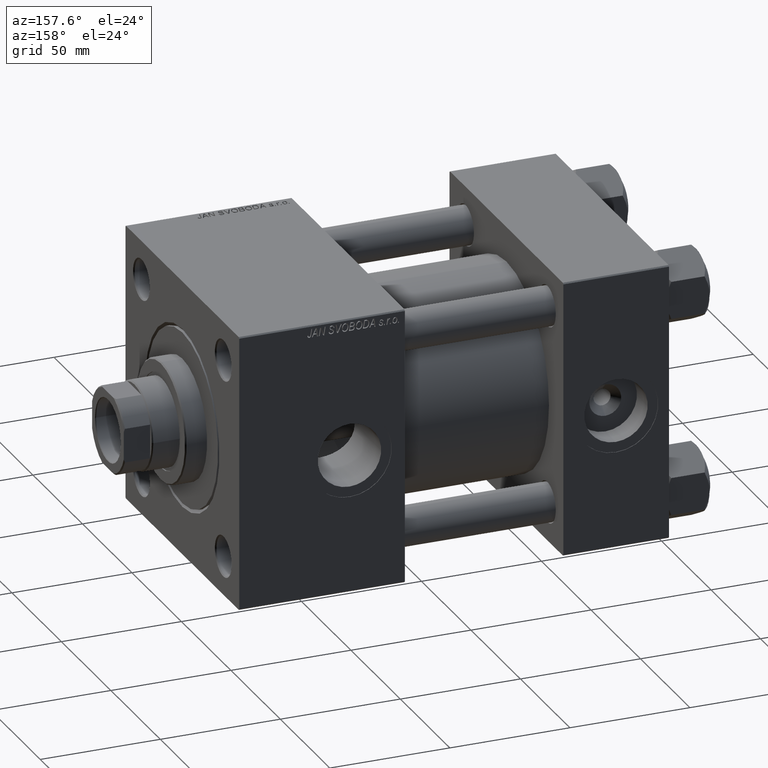
[diagram: clean part render]
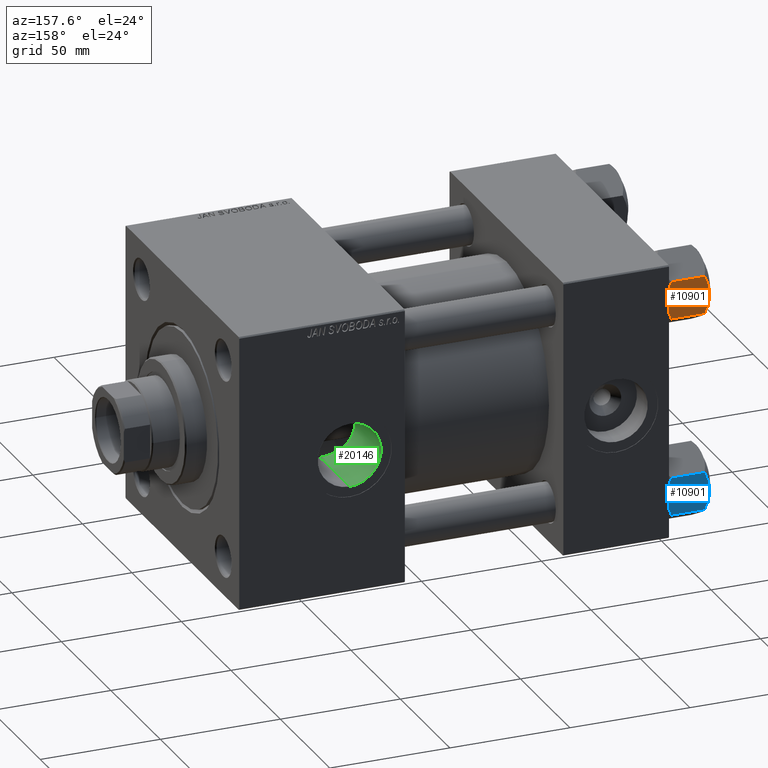
[diagram: same view with three faces highlighted in distinct colors, each labeled with its STEP entity id]
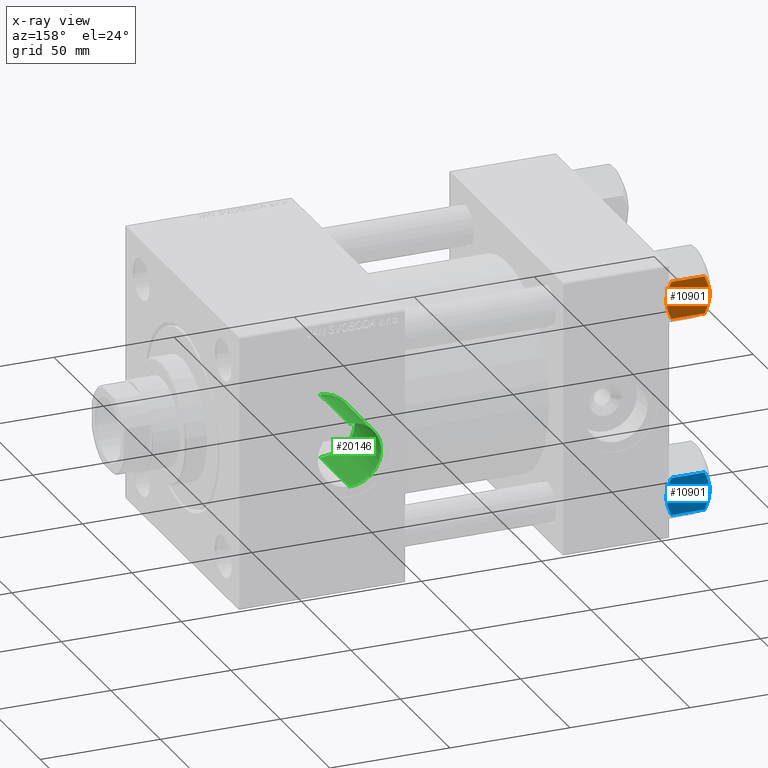
[diagram: x-ray of the same camera — body ghosted, the three highlighted faces saturated]
A machine part, auxiliary view with three faces highlighted in distinct colors.
The next image is the same camera in x-ray (body ghosted, the three faces saturated) — at least one of them is partly hidden behind the body in this view.
Their STEP definitions:

[orange] entity #10901 — the highlighted planar face has unit normal (0, -1, 0).
#86 = ORIENTED_EDGE ( 'NONE', *, *, #8301, .F. ) ;
#1046 = DIRECTION ( 'NONE',  ( -0.000000000000000000, -0.000000000000000000, 1.000000000000000000 ) ) ;
#1047 = VECTOR ( 'NONE', #27387, 1000.000000000000000 ) ;
#1972 = AXIS2_PLACEMENT_3D ( 'NONE', #14647, #42037, #45891 ) ;
#2108 = CARTESIAN_POINT ( 'NONE',  ( -1.502314598737160017E-15, 13.52731680711293727, 0.000000000000000000 ) ) ;
#2343 = VECTOR ( 'NONE', #1046, 1000.000000000000000 ) ;
#2910 = VERTEX_POINT ( 'NONE', #13331 ) ;
#4716 = VERTEX_POINT ( 'NONE', #44578 ) ;
#4826 = CARTESIAN_POINT ( 'NONE',  ( 2.638177715023106717, 13.52731680711294260, -0.2001540676698861931 ) ) ;
#7539 = DIRECTION ( 'NONE',  ( -0.000000000000000000, -0.000000000000000000, 1.000000000000000000 ) ) ;
#8301 = EDGE_CURVE ( 'NONE', #19557, #4716, #31236, .T. ) ;
#9397 = DIRECTION ( 'NONE',  ( 1.000000000000000000, 1.110578409716265846E-16, 0.000000000000000000 ) ) ;
#9904 = LINE ( 'NONE', #41388, #35497 ) ;
#10358 = EDGE_CURVE ( 'NONE', #49300, #31020, #9904, .T. ) ;
#10441 = CARTESIAN_POINT ( 'NONE',  ( 4.557734399832398253, 13.52731680711293905, -17.26585298258848056 ) ) ;
#10701 = CARTESIAN_POINT ( 'NONE',  ( 5.184073258379385152, 13.52731680711294260, -17.05185620934991064 ) ) ;
#10744 = B_SPLINE_CURVE_WITH_KNOTS ( 'NONE', 3,
 ( #26835, #38851, #22999, #19653, #15813, #31436, #47055, #30436 ),
 .UNSPECIFIED., .F., .F.,
 ( 4, 2, 2, 4 ),
 ( 0.01980594295952730829, 0.02179054093496184119, 0.02377513891039637409, 0.02774433486126544682 ),
 .UNSPECIFIED. ) ;
#10814 = CARTESIAN_POINT ( 'NONE',  ( -1.333889873825134353, 13.52731680711293905, -0.06156641003439419085 ) ) ;
#10901 = ADVANCED_FACE ( 'NONE', ( #49716 ), #25904, .F. ) ;
#10963 = CARTESIAN_POINT ( 'NONE',  ( 1.663410456966167184, 13.52731680711293905, -17.90195050864299375 ) ) ;
#11162 = CARTESIAN_POINT ( 'NONE',  ( -7.809999999999996945, 13.52731680711293727, -1.999999999999998224 ) ) ;
#11833 = LINE ( 'NONE', #47659, #2343 ) ;
#12269 = CARTESIAN_POINT ( 'NONE',  ( 5.189513245496327976, 13.52731680711294082, -0.9501108431732597781 ) ) ;
#12513 = CARTESIAN_POINT ( 'NONE',  ( 7.622943475354644782, 13.52731680711293727, -2.000000000000000000 ) ) ;
#13331 = CARTESIAN_POINT ( 'NONE',  ( -7.809999999999996945, 13.52731680711293727, -1.999999999999998224 ) ) ;
#13636 = CARTESIAN_POINT ( 'NONE',  ( -7.622943475354648335, 13.52731680711293727, -2.000000000000000000 ) ) ;
#14392 = CARTESIAN_POINT ( 'NONE',  ( -2.644243758052991389, 13.52731680711293905, -0.2408281198023998759 ) ) ;
#14581 = CARTESIAN_POINT ( 'NONE',  ( -1.502314598737160017E-15, 13.52731680711293727, -18.00000000000000000 ) ) ;
#14647 = CARTESIAN_POINT ( 'NONE',  ( -7.809999999999996945, 13.52731680711293727, -18.00000000000000000 ) ) ;
#14660 = CARTESIAN_POINT ( 'NONE',  ( -4.557734399832416905, 13.52731680711293905, -0.7341470174115153347 ) ) ;
#15091 = CARTESIAN_POINT ( 'NONE',  ( 0.6693083573771171357, 13.52731680711294082, -17.98750666918890673 ) ) ;
#15813 = CARTESIAN_POINT ( 'NONE',  ( -4.553769687922292420, 13.52731680711293905, -17.26727080048547691 ) ) ;
#16839 = EDGE_CURVE ( 'NONE', #39365, #2910, #42649, .T. ) ;
#17977 = CARTESIAN_POINT ( 'NONE',  ( -0.6693083573771214656, 13.52731680711293727, -0.01249333081108175945 ) ) ;
#18146 = CARTESIAN_POINT ( 'NONE',  ( -7.622943475354626131, 13.52731680711293727, -16.00000000000000000 ) ) ;
#18485 = CARTESIAN_POINT ( 'NONE',  ( -0.3330234424833839468, 13.52731680711293727, -8.499975625696903903E-16 ) ) ;
#18658 = LINE ( 'NONE', #37608, #18967 ) ;
#18842 = DIRECTION ( 'NONE',  ( -1.000000000000000000, -1.110578409716265846E-16, 0.000000000000000000 ) ) ;
#18967 = VECTOR ( 'NONE', #49383, 1000.000000000000000 ) ;
#19069 = CARTESIAN_POINT ( 'NONE',  ( 7.810000000000001386, 13.52731680711293905, -18.00000000000000000 ) ) ;
#19146 = CARTESIAN_POINT ( 'NONE',  ( 7.622943475354622578, 13.52731680711293727, -16.00000000000000000 ) ) ;
#19212 = EDGE_CURVE ( 'NONE', #4716, #47439, #35738, .T. ) ;
#19557 = VERTEX_POINT ( 'NONE', #30433 ) ;
#19653 = CARTESIAN_POINT ( 'NONE',  ( -5.189513245496315541, 13.52731680711293727, -17.04988915682673678 ) ) ;
#19857 = ORIENTED_EDGE ( 'NONE', *, *, #10358, .F. ) ;
#20260 = CARTESIAN_POINT ( 'NONE',  ( -7.622943475354648335, 13.52731680711293727, -2.000000000000000000 ) ) ;
#20599 = VERTEX_POINT ( 'NONE', #41665 ) ;
#20704 = CARTESIAN_POINT ( 'NONE',  ( -1.502314598737160017E-15, 13.52731680711293727, 0.000000000000000000 ) ) ;
#20794 = VECTOR ( 'NONE', #18842, 1000.000000000000000 ) ;
#20913 = ORIENTED_EDGE ( 'NONE', *, *, #19212, .F. ) ;
#21816 = CARTESIAN_POINT ( 'NONE',  ( -7.030203932307583337, 13.52731680711293372, -1.709001877891392907 ) ) ;
#22518 = CARTESIAN_POINT ( 'NONE',  ( 0.3330234424833806162, 13.52731680711293905, -17.99999999999998579 ) ) ;
#22999 = CARTESIAN_POINT ( 'NONE',  ( -6.427364677720452946, 13.52731680711293905, -16.56149306284485334 ) ) ;
#23291 = CARTESIAN_POINT ( 'NONE',  ( -7.809999999999996945, 13.52731680711293727, -1.999999999999998224 ) ) ;
#24557 = CARTESIAN_POINT ( 'NONE',  ( 7.030888348548061551, 13.52731680711294082, -1.709337883550299697 ) ) ;
#25053 = EDGE_CURVE ( 'NONE', #44853, #47062, #27868, .T. ) ;
#25671 = CARTESIAN_POINT ( 'NONE',  ( -3.287826776903158166, 13.52731680711293905, -0.3804584453753378503 ) ) ;
#25904 = PLANE ( 'NONE',  #1972 ) ;
#26067 = CARTESIAN_POINT ( 'NONE',  ( 6.422751913021802039, 13.52731680711294260, -16.56349088907410660 ) ) ;
#26828 = CARTESIAN_POINT ( 'NONE',  ( 3.287826776903140402, 13.52731680711293905, -17.61954155462465721 ) ) ;
#26835 = CARTESIAN_POINT ( 'NONE',  ( -7.622943475354626131, 13.52731680711293727, -16.00000000000000000 ) ) ;
#27387 = DIRECTION ( 'NONE',  ( -1.000000000000000000, -1.110578409716265846E-16, 0.000000000000000000 ) ) ;
#27868 = B_SPLINE_CURVE_WITH_KNOTS ( 'NONE', 3,
 ( #14581, #22518, #15091, #50134, #10963, #49882, #26828, #10441, #10701, #26067, #38096, #19146 ),
 .UNSPECIFIED., .F., .F.,
 ( 4, 2, 2, 2, 2, 4 ),
 ( 0.02774433486126544682, 0.02873404020403548184, 0.02972374554680551340, 0.03170315623234558344, 0.03368256691788565349, 0.03566197760342572354 ),
 .UNSPECIFIED. ) ;
#28130 = ORIENTED_EDGE ( 'NONE', *, *, #50326, .T. ) ;
#29208 = CARTESIAN_POINT ( 'NONE',  ( -7.809999999999996945, 13.52731680711293727, -16.00000000000000000 ) ) ;
#29282 = VECTOR ( 'NONE', #7539, 1000.000000000000000 ) ;
#29327 = EDGE_CURVE ( 'NONE', #20599, #19557, #34178, .T. ) ;
#29513 = CARTESIAN_POINT ( 'NONE',  ( -6.422751913021828685, 13.52731680711293905, -1.436509110925899391 ) ) ;
#30433 = CARTESIAN_POINT ( 'NONE',  ( 7.810000000000000497, 13.52731680711293905, -1.999999999999998224 ) ) ;
#30436 = CARTESIAN_POINT ( 'NONE',  ( -1.502314598737160017E-15, 13.52731680711293727, -18.00000000000000000 ) ) ;
#30815 = CARTESIAN_POINT ( 'NONE',  ( -1.502314598737160017E-15, 13.52731680711293727, -18.00000000000000000 ) ) ;
#31020 = VERTEX_POINT ( 'NONE', #18146 ) ;
#31236 = LINE ( 'NONE', #23291, #1047 ) ;
#31436 = CARTESIAN_POINT ( 'NONE',  ( -2.638177715023100056, 13.52731680711293905, -17.79984593233010770 ) ) ;
#31885 = ORIENTED_EDGE ( 'NONE', *, *, #16839, .F. ) ;
#32269 = ORIENTED_EDGE ( 'NONE', *, *, #25053, .F. ) ;
#32792 = EDGE_CURVE ( 'NONE', #47439, #39365, #48734, .T. ) ;
#32955 = ORIENTED_EDGE ( 'NONE', *, *, #34315, .F. ) ;
#33197 = ORIENTED_EDGE ( 'NONE', *, *, #32792, .F. ) ;
#34178 = LINE ( 'NONE', #19069, #29282 ) ;
#34315 = EDGE_CURVE ( 'NONE', #31020, #44853, #10744, .T. ) ;
#35140 = CARTESIAN_POINT ( 'NONE',  ( -1.502314598737160017E-15, 13.52731680711293727, 0.000000000000000000 ) ) ;
#35497 = VECTOR ( 'NONE', #9397, 1000.000000000000000 ) ;
#35738 = B_SPLINE_CURVE_WITH_KNOTS ( 'NONE', 3,
 ( #12513, #24557, #43756, #12269, #40170, #4826, #47107, #20704 ),
 .UNSPECIFIED., .F., .F.,
 ( 4, 2, 2, 4 ),
 ( 0.01980594295952729095, 0.02179054093496183425, 0.02377513891039637409, 0.02774433486126545723 ),
 .UNSPECIFIED. ) ;
#37608 = CARTESIAN_POINT ( 'NONE',  ( -7.809999999999996945, 13.52731680711293727, -16.00000000000000000 ) ) ;
#37790 = EDGE_LOOP ( 'NONE', ( #19857, #28130, #31885, #33197, #20913, #86, #38381, #46505, #32269, #32955 ) ) ;
#38096 = CARTESIAN_POINT ( 'NONE',  ( 7.030203932307562908, 13.52731680711294260, -16.29099812210860065 ) ) ;
#38381 = ORIENTED_EDGE ( 'NONE', *, *, #29327, .F. ) ;
#38748 = EDGE_CURVE ( 'NONE', #47062, #20599, #18658, .T. ) ;
#38851 = CARTESIAN_POINT ( 'NONE',  ( -7.030888348548044675, 13.52731680711294082, -16.29066211644970252 ) ) ;
#39365 = VERTEX_POINT ( 'NONE', #20260 ) ;
#40170 = CARTESIAN_POINT ( 'NONE',  ( 4.553769687922307519, 13.52731680711294260, -0.7327291995145179815 ) ) ;
#41388 = CARTESIAN_POINT ( 'NONE',  ( -7.809999999999996945, 13.52731680711293727, -16.00000000000000000 ) ) ;
#41665 = CARTESIAN_POINT ( 'NONE',  ( 7.810000000000000497, 13.52731680711293905, -16.00000000000000000 ) ) ;
#42037 = DIRECTION ( 'NONE',  ( 1.110578409716265846E-16, -1.000000000000000000, 0.000000000000000000 ) ) ;
#42649 = LINE ( 'NONE', #11162, #20794 ) ;
#43756 = CARTESIAN_POINT ( 'NONE',  ( 6.427364677720470709, 13.52731680711294082, -1.438506937155140442 ) ) ;
#44578 = CARTESIAN_POINT ( 'NONE',  ( 7.622943475354644782, 13.52731680711293727, -2.000000000000000000 ) ) ;
#44853 = VERTEX_POINT ( 'NONE', #30815 ) ;
#45891 = DIRECTION ( 'NONE',  ( 1.000000000000000000, 1.110578409716265846E-16, 0.000000000000000000 ) ) ;
#46245 = CARTESIAN_POINT ( 'NONE',  ( 7.622943475354622578, 13.52731680711293727, -16.00000000000000000 ) ) ;
#46505 = ORIENTED_EDGE ( 'NONE', *, *, #38748, .F. ) ;
#47055 = CARTESIAN_POINT ( 'NONE',  ( -1.335584685993412180, 13.52731680711293549, -17.99999999999998224 ) ) ;
#47062 = VERTEX_POINT ( 'NONE', #46245 ) ;
#47107 = CARTESIAN_POINT ( 'NONE',  ( 1.335584685993415732, 13.52731680711294260, -9.825582188149885905E-16 ) ) ;
#47439 = VERTEX_POINT ( 'NONE', #35140 ) ;
#47659 = CARTESIAN_POINT ( 'NONE',  ( -7.809999999999996945, 13.52731680711293727, -18.00000000000000000 ) ) ;
#48709 = CARTESIAN_POINT ( 'NONE',  ( -1.663410456966174955, 13.52731680711293905, -0.09804949135699160545 ) ) ;
#48734 = B_SPLINE_CURVE_WITH_KNOTS ( 'NONE', 3,
 ( #2108, #18485, #17977, #10814, #48709, #14392, #25671, #14660, #49729, #29513, #21816, #13636 ),
 .UNSPECIFIED., .F., .F.,
 ( 4, 2, 2, 2, 2, 4 ),
 ( 0.02774433486126545723, 0.02873404020403549572, 0.02972374554680553421, 0.03170315623234561120, 0.03368256691788568125, 0.03566197760342575823 ),
 .UNSPECIFIED. ) ;
#49300 = VERTEX_POINT ( 'NONE', #29208 ) ;
#49383 = DIRECTION ( 'NONE',  ( 1.000000000000000000, 1.110578409716265846E-16, 0.000000000000000000 ) ) ;
#49716 = FACE_OUTER_BOUND ( 'NONE', #37790, .T. ) ;
#49729 = CARTESIAN_POINT ( 'NONE',  ( -5.184073258379408244, 13.52731680711293727, -0.9481437906500859158 ) ) ;
#49882 = CARTESIAN_POINT ( 'NONE',  ( 2.644243758052981175, 13.52731680711294082, -17.75917188019759507 ) ) ;
#50134 = CARTESIAN_POINT ( 'NONE',  ( 1.333889873825127248, 13.52731680711293549, -17.93843358996559090 ) ) ;
#50326 = EDGE_CURVE ( 'NONE', #49300, #2910, #11833, .T. ) ;

[blue] entity #10901 — the highlighted planar face has unit normal (0, -1, 0).
#86 = ORIENTED_EDGE ( 'NONE', *, *, #8301, .F. ) ;
#1046 = DIRECTION ( 'NONE',  ( -0.000000000000000000, -0.000000000000000000, 1.000000000000000000 ) ) ;
#1047 = VECTOR ( 'NONE', #27387, 1000.000000000000000 ) ;
#1972 = AXIS2_PLACEMENT_3D ( 'NONE', #14647, #42037, #45891 ) ;
#2108 = CARTESIAN_POINT ( 'NONE',  ( -1.502314598737160017E-15, 13.52731680711293727, 0.000000000000000000 ) ) ;
#2343 = VECTOR ( 'NONE', #1046, 1000.000000000000000 ) ;
#2910 = VERTEX_POINT ( 'NONE', #13331 ) ;
#4716 = VERTEX_POINT ( 'NONE', #44578 ) ;
#4826 = CARTESIAN_POINT ( 'NONE',  ( 2.638177715023106717, 13.52731680711294260, -0.2001540676698861931 ) ) ;
#7539 = DIRECTION ( 'NONE',  ( -0.000000000000000000, -0.000000000000000000, 1.000000000000000000 ) ) ;
#8301 = EDGE_CURVE ( 'NONE', #19557, #4716, #31236, .T. ) ;
#9397 = DIRECTION ( 'NONE',  ( 1.000000000000000000, 1.110578409716265846E-16, 0.000000000000000000 ) ) ;
#9904 = LINE ( 'NONE', #41388, #35497 ) ;
#10358 = EDGE_CURVE ( 'NONE', #49300, #31020, #9904, .T. ) ;
#10441 = CARTESIAN_POINT ( 'NONE',  ( 4.557734399832398253, 13.52731680711293905, -17.26585298258848056 ) ) ;
#10701 = CARTESIAN_POINT ( 'NONE',  ( 5.184073258379385152, 13.52731680711294260, -17.05185620934991064 ) ) ;
#10744 = B_SPLINE_CURVE_WITH_KNOTS ( 'NONE', 3,
 ( #26835, #38851, #22999, #19653, #15813, #31436, #47055, #30436 ),
 .UNSPECIFIED., .F., .F.,
 ( 4, 2, 2, 4 ),
 ( 0.01980594295952730829, 0.02179054093496184119, 0.02377513891039637409, 0.02774433486126544682 ),
 .UNSPECIFIED. ) ;
#10814 = CARTESIAN_POINT ( 'NONE',  ( -1.333889873825134353, 13.52731680711293905, -0.06156641003439419085 ) ) ;
#10901 = ADVANCED_FACE ( 'NONE', ( #49716 ), #25904, .F. ) ;
#10963 = CARTESIAN_POINT ( 'NONE',  ( 1.663410456966167184, 13.52731680711293905, -17.90195050864299375 ) ) ;
#11162 = CARTESIAN_POINT ( 'NONE',  ( -7.809999999999996945, 13.52731680711293727, -1.999999999999998224 ) ) ;
#11833 = LINE ( 'NONE', #47659, #2343 ) ;
#12269 = CARTESIAN_POINT ( 'NONE',  ( 5.189513245496327976, 13.52731680711294082, -0.9501108431732597781 ) ) ;
#12513 = CARTESIAN_POINT ( 'NONE',  ( 7.622943475354644782, 13.52731680711293727, -2.000000000000000000 ) ) ;
#13331 = CARTESIAN_POINT ( 'NONE',  ( -7.809999999999996945, 13.52731680711293727, -1.999999999999998224 ) ) ;
#13636 = CARTESIAN_POINT ( 'NONE',  ( -7.622943475354648335, 13.52731680711293727, -2.000000000000000000 ) ) ;
#14392 = CARTESIAN_POINT ( 'NONE',  ( -2.644243758052991389, 13.52731680711293905, -0.2408281198023998759 ) ) ;
#14581 = CARTESIAN_POINT ( 'NONE',  ( -1.502314598737160017E-15, 13.52731680711293727, -18.00000000000000000 ) ) ;
#14647 = CARTESIAN_POINT ( 'NONE',  ( -7.809999999999996945, 13.52731680711293727, -18.00000000000000000 ) ) ;
#14660 = CARTESIAN_POINT ( 'NONE',  ( -4.557734399832416905, 13.52731680711293905, -0.7341470174115153347 ) ) ;
#15091 = CARTESIAN_POINT ( 'NONE',  ( 0.6693083573771171357, 13.52731680711294082, -17.98750666918890673 ) ) ;
#15813 = CARTESIAN_POINT ( 'NONE',  ( -4.553769687922292420, 13.52731680711293905, -17.26727080048547691 ) ) ;
#16839 = EDGE_CURVE ( 'NONE', #39365, #2910, #42649, .T. ) ;
#17977 = CARTESIAN_POINT ( 'NONE',  ( -0.6693083573771214656, 13.52731680711293727, -0.01249333081108175945 ) ) ;
#18146 = CARTESIAN_POINT ( 'NONE',  ( -7.622943475354626131, 13.52731680711293727, -16.00000000000000000 ) ) ;
#18485 = CARTESIAN_POINT ( 'NONE',  ( -0.3330234424833839468, 13.52731680711293727, -8.499975625696903903E-16 ) ) ;
#18658 = LINE ( 'NONE', #37608, #18967 ) ;
#18842 = DIRECTION ( 'NONE',  ( -1.000000000000000000, -1.110578409716265846E-16, 0.000000000000000000 ) ) ;
#18967 = VECTOR ( 'NONE', #49383, 1000.000000000000000 ) ;
#19069 = CARTESIAN_POINT ( 'NONE',  ( 7.810000000000001386, 13.52731680711293905, -18.00000000000000000 ) ) ;
#19146 = CARTESIAN_POINT ( 'NONE',  ( 7.622943475354622578, 13.52731680711293727, -16.00000000000000000 ) ) ;
#19212 = EDGE_CURVE ( 'NONE', #4716, #47439, #35738, .T. ) ;
#19557 = VERTEX_POINT ( 'NONE', #30433 ) ;
#19653 = CARTESIAN_POINT ( 'NONE',  ( -5.189513245496315541, 13.52731680711293727, -17.04988915682673678 ) ) ;
#19857 = ORIENTED_EDGE ( 'NONE', *, *, #10358, .F. ) ;
#20260 = CARTESIAN_POINT ( 'NONE',  ( -7.622943475354648335, 13.52731680711293727, -2.000000000000000000 ) ) ;
#20599 = VERTEX_POINT ( 'NONE', #41665 ) ;
#20704 = CARTESIAN_POINT ( 'NONE',  ( -1.502314598737160017E-15, 13.52731680711293727, 0.000000000000000000 ) ) ;
#20794 = VECTOR ( 'NONE', #18842, 1000.000000000000000 ) ;
#20913 = ORIENTED_EDGE ( 'NONE', *, *, #19212, .F. ) ;
#21816 = CARTESIAN_POINT ( 'NONE',  ( -7.030203932307583337, 13.52731680711293372, -1.709001877891392907 ) ) ;
#22518 = CARTESIAN_POINT ( 'NONE',  ( 0.3330234424833806162, 13.52731680711293905, -17.99999999999998579 ) ) ;
#22999 = CARTESIAN_POINT ( 'NONE',  ( -6.427364677720452946, 13.52731680711293905, -16.56149306284485334 ) ) ;
#23291 = CARTESIAN_POINT ( 'NONE',  ( -7.809999999999996945, 13.52731680711293727, -1.999999999999998224 ) ) ;
#24557 = CARTESIAN_POINT ( 'NONE',  ( 7.030888348548061551, 13.52731680711294082, -1.709337883550299697 ) ) ;
#25053 = EDGE_CURVE ( 'NONE', #44853, #47062, #27868, .T. ) ;
#25671 = CARTESIAN_POINT ( 'NONE',  ( -3.287826776903158166, 13.52731680711293905, -0.3804584453753378503 ) ) ;
#25904 = PLANE ( 'NONE',  #1972 ) ;
#26067 = CARTESIAN_POINT ( 'NONE',  ( 6.422751913021802039, 13.52731680711294260, -16.56349088907410660 ) ) ;
#26828 = CARTESIAN_POINT ( 'NONE',  ( 3.287826776903140402, 13.52731680711293905, -17.61954155462465721 ) ) ;
#26835 = CARTESIAN_POINT ( 'NONE',  ( -7.622943475354626131, 13.52731680711293727, -16.00000000000000000 ) ) ;
#27387 = DIRECTION ( 'NONE',  ( -1.000000000000000000, -1.110578409716265846E-16, 0.000000000000000000 ) ) ;
#27868 = B_SPLINE_CURVE_WITH_KNOTS ( 'NONE', 3,
 ( #14581, #22518, #15091, #50134, #10963, #49882, #26828, #10441, #10701, #26067, #38096, #19146 ),
 .UNSPECIFIED., .F., .F.,
 ( 4, 2, 2, 2, 2, 4 ),
 ( 0.02774433486126544682, 0.02873404020403548184, 0.02972374554680551340, 0.03170315623234558344, 0.03368256691788565349, 0.03566197760342572354 ),
 .UNSPECIFIED. ) ;
#28130 = ORIENTED_EDGE ( 'NONE', *, *, #50326, .T. ) ;
#29208 = CARTESIAN_POINT ( 'NONE',  ( -7.809999999999996945, 13.52731680711293727, -16.00000000000000000 ) ) ;
#29282 = VECTOR ( 'NONE', #7539, 1000.000000000000000 ) ;
#29327 = EDGE_CURVE ( 'NONE', #20599, #19557, #34178, .T. ) ;
#29513 = CARTESIAN_POINT ( 'NONE',  ( -6.422751913021828685, 13.52731680711293905, -1.436509110925899391 ) ) ;
#30433 = CARTESIAN_POINT ( 'NONE',  ( 7.810000000000000497, 13.52731680711293905, -1.999999999999998224 ) ) ;
#30436 = CARTESIAN_POINT ( 'NONE',  ( -1.502314598737160017E-15, 13.52731680711293727, -18.00000000000000000 ) ) ;
#30815 = CARTESIAN_POINT ( 'NONE',  ( -1.502314598737160017E-15, 13.52731680711293727, -18.00000000000000000 ) ) ;
#31020 = VERTEX_POINT ( 'NONE', #18146 ) ;
#31236 = LINE ( 'NONE', #23291, #1047 ) ;
#31436 = CARTESIAN_POINT ( 'NONE',  ( -2.638177715023100056, 13.52731680711293905, -17.79984593233010770 ) ) ;
#31885 = ORIENTED_EDGE ( 'NONE', *, *, #16839, .F. ) ;
#32269 = ORIENTED_EDGE ( 'NONE', *, *, #25053, .F. ) ;
#32792 = EDGE_CURVE ( 'NONE', #47439, #39365, #48734, .T. ) ;
#32955 = ORIENTED_EDGE ( 'NONE', *, *, #34315, .F. ) ;
#33197 = ORIENTED_EDGE ( 'NONE', *, *, #32792, .F. ) ;
#34178 = LINE ( 'NONE', #19069, #29282 ) ;
#34315 = EDGE_CURVE ( 'NONE', #31020, #44853, #10744, .T. ) ;
#35140 = CARTESIAN_POINT ( 'NONE',  ( -1.502314598737160017E-15, 13.52731680711293727, 0.000000000000000000 ) ) ;
#35497 = VECTOR ( 'NONE', #9397, 1000.000000000000000 ) ;
#35738 = B_SPLINE_CURVE_WITH_KNOTS ( 'NONE', 3,
 ( #12513, #24557, #43756, #12269, #40170, #4826, #47107, #20704 ),
 .UNSPECIFIED., .F., .F.,
 ( 4, 2, 2, 4 ),
 ( 0.01980594295952729095, 0.02179054093496183425, 0.02377513891039637409, 0.02774433486126545723 ),
 .UNSPECIFIED. ) ;
#37608 = CARTESIAN_POINT ( 'NONE',  ( -7.809999999999996945, 13.52731680711293727, -16.00000000000000000 ) ) ;
#37790 = EDGE_LOOP ( 'NONE', ( #19857, #28130, #31885, #33197, #20913, #86, #38381, #46505, #32269, #32955 ) ) ;
#38096 = CARTESIAN_POINT ( 'NONE',  ( 7.030203932307562908, 13.52731680711294260, -16.29099812210860065 ) ) ;
#38381 = ORIENTED_EDGE ( 'NONE', *, *, #29327, .F. ) ;
#38748 = EDGE_CURVE ( 'NONE', #47062, #20599, #18658, .T. ) ;
#38851 = CARTESIAN_POINT ( 'NONE',  ( -7.030888348548044675, 13.52731680711294082, -16.29066211644970252 ) ) ;
#39365 = VERTEX_POINT ( 'NONE', #20260 ) ;
#40170 = CARTESIAN_POINT ( 'NONE',  ( 4.553769687922307519, 13.52731680711294260, -0.7327291995145179815 ) ) ;
#41388 = CARTESIAN_POINT ( 'NONE',  ( -7.809999999999996945, 13.52731680711293727, -16.00000000000000000 ) ) ;
#41665 = CARTESIAN_POINT ( 'NONE',  ( 7.810000000000000497, 13.52731680711293905, -16.00000000000000000 ) ) ;
#42037 = DIRECTION ( 'NONE',  ( 1.110578409716265846E-16, -1.000000000000000000, 0.000000000000000000 ) ) ;
#42649 = LINE ( 'NONE', #11162, #20794 ) ;
#43756 = CARTESIAN_POINT ( 'NONE',  ( 6.427364677720470709, 13.52731680711294082, -1.438506937155140442 ) ) ;
#44578 = CARTESIAN_POINT ( 'NONE',  ( 7.622943475354644782, 13.52731680711293727, -2.000000000000000000 ) ) ;
#44853 = VERTEX_POINT ( 'NONE', #30815 ) ;
#45891 = DIRECTION ( 'NONE',  ( 1.000000000000000000, 1.110578409716265846E-16, 0.000000000000000000 ) ) ;
#46245 = CARTESIAN_POINT ( 'NONE',  ( 7.622943475354622578, 13.52731680711293727, -16.00000000000000000 ) ) ;
#46505 = ORIENTED_EDGE ( 'NONE', *, *, #38748, .F. ) ;
#47055 = CARTESIAN_POINT ( 'NONE',  ( -1.335584685993412180, 13.52731680711293549, -17.99999999999998224 ) ) ;
#47062 = VERTEX_POINT ( 'NONE', #46245 ) ;
#47107 = CARTESIAN_POINT ( 'NONE',  ( 1.335584685993415732, 13.52731680711294260, -9.825582188149885905E-16 ) ) ;
#47439 = VERTEX_POINT ( 'NONE', #35140 ) ;
#47659 = CARTESIAN_POINT ( 'NONE',  ( -7.809999999999996945, 13.52731680711293727, -18.00000000000000000 ) ) ;
#48709 = CARTESIAN_POINT ( 'NONE',  ( -1.663410456966174955, 13.52731680711293905, -0.09804949135699160545 ) ) ;
#48734 = B_SPLINE_CURVE_WITH_KNOTS ( 'NONE', 3,
 ( #2108, #18485, #17977, #10814, #48709, #14392, #25671, #14660, #49729, #29513, #21816, #13636 ),
 .UNSPECIFIED., .F., .F.,
 ( 4, 2, 2, 2, 2, 4 ),
 ( 0.02774433486126545723, 0.02873404020403549572, 0.02972374554680553421, 0.03170315623234561120, 0.03368256691788568125, 0.03566197760342575823 ),
 .UNSPECIFIED. ) ;
#49300 = VERTEX_POINT ( 'NONE', #29208 ) ;
#49383 = DIRECTION ( 'NONE',  ( 1.000000000000000000, 1.110578409716265846E-16, 0.000000000000000000 ) ) ;
#49716 = FACE_OUTER_BOUND ( 'NONE', #37790, .T. ) ;
#49729 = CARTESIAN_POINT ( 'NONE',  ( -5.184073258379408244, 13.52731680711293727, -0.9481437906500859158 ) ) ;
#49882 = CARTESIAN_POINT ( 'NONE',  ( 2.644243758052981175, 13.52731680711294082, -17.75917188019759507 ) ) ;
#50134 = CARTESIAN_POINT ( 'NONE',  ( 1.333889873825127248, 13.52731680711293549, -17.93843358996559090 ) ) ;
#50326 = EDGE_CURVE ( 'NONE', #49300, #2910, #11833, .T. ) ;

[green] entity #20146 — the highlighted cylindrical surface (edge-blend (fillet) strip) has radius 13.22 mm, axis along (0, 1, 0).
#267 = ORIENTED_EDGE ( 'NONE', *, *, #42698, .F. ) ;
#1561 = VECTOR ( 'NONE', #30837, 1000.000000000000000 ) ;
#2691 = CARTESIAN_POINT ( 'NONE',  ( 119.9552371504892250, 30.42435429361170307, -2.189278755698953027 ) ) ;
#3210 = CARTESIAN_POINT ( 'NONE',  ( 124.2730878933085705, 28.83644685509614192, -9.939442956448850452 ) ) ;
#3459 = CARTESIAN_POINT ( 'NONE',  ( 123.0438086488639726, 29.22803557907762695, -8.739437049842038618 ) ) ;
#3679 = DIRECTION ( 'NONE',  ( 0.000000000000000000, 0.000000000000000000, 1.000000000000000000 ) ) ;
#3745 = VERTEX_POINT ( 'NONE', #6159 ) ;
#6159 = CARTESIAN_POINT ( 'NONE',  ( 133.0000000000000000, 27.48602554026317435, -13.22000000000001307 ) ) ;
#6536 = CARTESIAN_POINT ( 'NONE',  ( 120.9672967035094473, 30.00407358905176380, -5.492612641369692739 ) ) ;
#6798 = CARTESIAN_POINT ( 'NONE',  ( 124.9341556027196845, 28.64331541826130589, -10.48301842797575034 ) ) ;
#7050 = CARTESIAN_POINT ( 'NONE',  ( 123.0473731174651704, 29.22679903910049859, 8.743617048434082051 ) ) ;
#7304 = CARTESIAN_POINT ( 'NONE',  ( 132.1134150803935086, 27.49685012189992506, 13.19756092916644974 ) ) ;
#9061 = CARTESIAN_POINT ( 'NONE',  ( 133.0000000000000000, 57.29999999999999716, -13.22000000000001307 ) ) ;
#9418 = ORIENTED_EDGE ( 'NONE', *, *, #28297, .T. ) ;
#10368 = CARTESIAN_POINT ( 'NONE',  ( 119.8891115833079937, 30.45283964616873007, -1.751073242079242531 ) ) ;
#10637 = CARTESIAN_POINT ( 'NONE',  ( 128.7068964544952507, 27.80809078274620916, 12.53370710140859678 ) ) ;
#10895 = CARTESIAN_POINT ( 'NONE',  ( 119.9521610525348763, 30.42567252313473958, 2.171687124408181457 ) ) ;
#11400 = CARTESIAN_POINT ( 'NONE',  ( 121.5656472595184567, 29.76894608984558488, -6.649226455900623556 ) ) ;
#13186 = EDGE_CURVE ( 'NONE', #48145, #29051, #50223, .T. ) ;
#13876 = CIRCLE ( 'NONE', #20415, 13.22000000000001307 ) ;
#14469 = CARTESIAN_POINT ( 'NONE',  ( 120.4677033987409800, 30.20674484256638692, 4.296135475357576894 ) ) ;
#14993 = CARTESIAN_POINT ( 'NONE',  ( 124.2783375840803188, 28.83486139504595158, 9.944026392801022851 ) ) ;
#15243 = CARTESIAN_POINT ( 'NONE',  ( 119.8017463083117491, 30.49055506137071347, -0.8762146220601745306 ) ) ;
#15496 = CARTESIAN_POINT ( 'NONE',  ( 121.5493670143524980, 29.77249498464554378, 6.662286344075493361 ) ) ;
#15974 = AXIS2_PLACEMENT_3D ( 'NONE', #38506, #26736, #3679 ) ;
#16082 = CARTESIAN_POINT ( 'NONE',  ( 133.0000000000000000, 57.29999999999999716, 13.22000000000001307 ) ) ;
#18308 = CARTESIAN_POINT ( 'NONE',  ( 133.0000000000000000, 27.48602554026317435, -13.22000000000001307 ) ) ;
#18565 = CARTESIAN_POINT ( 'NONE',  ( 129.5319641781283906, 27.69083871833037236, -12.78685970456083254 ) ) ;
#18831 = CARTESIAN_POINT ( 'NONE',  ( 121.1542858074938067, 29.92936139373705373, -5.885209454646792793 ) ) ;
#19082 = CARTESIAN_POINT ( 'NONE',  ( 129.5327437527731149, 27.69092983374395800, 12.78664795889660333 ) ) ;
#19329 = CARTESIAN_POINT ( 'NONE',  ( 119.8012799658383472, 30.49075770438743760, 0.8676718968637189278 ) ) ;
#20146 = ADVANCED_FACE ( 'NONE', ( #29820 ), #42607, .F. ) ;
#20415 = AXIS2_PLACEMENT_3D ( 'NONE', #49887, #34526, #23244 ) ;
#22153 = CARTESIAN_POINT ( 'NONE',  ( 123.9583286087332823, 28.93355788007936980, 9.654060476841078042 ) ) ;
#22321 = B_SPLINE_CURVE_WITH_KNOTS ( 'NONE', 3,
 ( #18308, #42139, #26765, #42384, #50323, #18565, #30866, #33935, #42634, #37774, #50070, #34704, #6798, #3210, #26515, #3459, #38782, #38534, #11400, #18831, #6536, #27023, #46242, #2691, #10368, #15243, #45984, #34949, #19329, #34195, #10895, #49549, #14469, #49814, #15496, #34456, #7050, #22153, #14993, #30102, #26257, #22667, #38281, #45727, #41615, #10637, #19082, #30618, #46489, #7304, #22416, #22928 ),
 .UNSPECIFIED., .F., .F.,
 ( 4, 2, 2, 2, 2, 2, 2, 2, 2, 2, 2, 2, 2, 2, 2, 2, 2, 2, 2, 2, 2, 2, 2, 2, 2, 4 ),
 ( 0.04185456545875307355, 0.04316126087825673113, 0.04446795629776038872, 0.04708134713676770389, 0.04838804255627136147, 0.04969473797577501906, 0.05100143339527860725, 0.05230812881478220239, 0.05492151965378938572, 0.05622821507329296697, 0.05753491049279654823, 0.06014830133180369687, 0.06145499675130726425, 0.06276169217081083163, 0.06406838759031441288, 0.06537508300981798026, 0.06798847384882511502, 0.07060186468783226366, 0.07321525552683939841, 0.07452195094634296579, 0.07582864636584654705, 0.07713534178535011443, 0.07844203720485368181, 0.08105542804386089983, 0.08236212346336453660, 0.08366881888286818725 ),
 .UNSPECIFIED. ) ;
#22416 = CARTESIAN_POINT ( 'NONE',  ( 132.5576600780171077, 27.48602554026318501, 13.22000000000002196 ) ) ;
#22667 = CARTESIAN_POINT ( 'NONE',  ( 125.9886200911439147, 28.36413578868933172, 11.21563918299624163 ) ) ;
#22928 = CARTESIAN_POINT ( 'NONE',  ( 132.9999999999999716, 27.48602554026317435, 13.22000000000001307 ) ) ;
#23244 = DIRECTION ( 'NONE',  ( 0.000000000000000000, 0.000000000000000000, 1.000000000000000000 ) ) ;
#26257 = CARTESIAN_POINT ( 'NONE',  ( 125.2808361596560758, 28.54733334668878086, 10.74078768598460343 ) ) ;
#26515 = CARTESIAN_POINT ( 'NONE',  ( 123.9529951608606666, 28.93523070509821693, -9.649035184034543633 ) ) ;
#26592 = VECTOR ( 'NONE', #42540, 1000.000000000000000 ) ;
#26736 = DIRECTION ( 'NONE',  ( -0.000000000000000000, 1.000000000000000000, -0.000000000000000000 ) ) ;
#26765 = CARTESIAN_POINT ( 'NONE',  ( 132.1283154291221820, 27.49637901534174134, -13.19854020490743451 ) ) ;
#27023 = CARTESIAN_POINT ( 'NONE',  ( 120.4682652175977040, 30.20651436230127729, -4.297603092604096453 ) ) ;
#28297 = EDGE_CURVE ( 'NONE', #3745, #44729, #50044, .T. ) ;
#29051 = VERTEX_POINT ( 'NONE', #16082 ) ;
#29820 = FACE_OUTER_BOUND ( 'NONE', #35222, .T. ) ;
#30102 = CARTESIAN_POINT ( 'NONE',  ( 124.9388290811651530, 28.64200260032307810, 10.48659046665410521 ) ) ;
#30618 = CARTESIAN_POINT ( 'NONE',  ( 130.8076220742238434, 27.57007713559720941, 13.04414953179170666 ) ) ;
#30837 = DIRECTION ( 'NONE',  ( -0.000000000000000000, 1.000000000000000000, -0.000000000000000000 ) ) ;
#30866 = CARTESIAN_POINT ( 'NONE',  ( 128.7047342321350527, 27.80849258881733377, -12.53278253679627952 ) ) ;
#32272 = CARTESIAN_POINT ( 'NONE',  ( 132.9999999999999716, 27.48602554026317435, 13.22000000000001307 ) ) ;
#32547 = ORIENTED_EDGE ( 'NONE', *, *, #34273, .T. ) ;
#33935 = CARTESIAN_POINT ( 'NONE',  ( 127.5048214367274539, 28.02719974335071740, -12.03159586632442135 ) ) ;
#34195 = CARTESIAN_POINT ( 'NONE',  ( 119.8873024443522581, 30.45361935851585855, 1.736729073545212110 ) ) ;
#34273 = EDGE_CURVE ( 'NONE', #44729, #29051, #13876, .T. ) ;
#34456 = CARTESIAN_POINT ( 'NONE',  ( 122.5055155616612268, 29.41799900512065591, 8.085100585392773098 ) ) ;
#34526 = DIRECTION ( 'NONE',  ( 0.000000000000000000, 1.000000000000000000, 0.000000000000000000 ) ) ;
#34704 = CARTESIAN_POINT ( 'NONE',  ( 125.2766177703967543, 28.54846687087107071, -10.73778964864927943 ) ) ;
#34850 = CARTESIAN_POINT ( 'NONE',  ( 133.0000000000000000, -37.39180658914467159, 13.22000000000001307 ) ) ;
#34949 = CARTESIAN_POINT ( 'NONE',  ( 119.7798833751725738, 30.50005055016960753, 0.4324207619027670702 ) ) ;
#35222 = EDGE_LOOP ( 'NONE', ( #267, #9418, #32547, #46544 ) ) ;
#37774 = CARTESIAN_POINT ( 'NONE',  ( 126.3523285978823196, 28.27607477382293766, -11.43513997626963175 ) ) ;
#38281 = CARTESIAN_POINT ( 'NONE',  ( 126.3543953198621779, 28.27560273858751572, 11.43629410241071476 ) ) ;
#38506 = CARTESIAN_POINT ( 'NONE',  ( 133.0000000000000000, -37.39180658914467159, 0.000000000000000000 ) ) ;
#38534 = CARTESIAN_POINT ( 'NONE',  ( 121.7879982963804082, 29.68402861147382410, -7.017278994872268250 ) ) ;
#38782 = CARTESIAN_POINT ( 'NONE',  ( 122.5032471323607695, 29.41882578186303121, -8.081938258306617939 ) ) ;
#41615 = CARTESIAN_POINT ( 'NONE',  ( 127.5033240587347620, 28.02747652100599041, 12.03095970967391182 ) ) ;
#42108 = CARTESIAN_POINT ( 'NONE',  ( 133.0000000000000000, -37.39180658914467159, -13.22000000000001307 ) ) ;
#42139 = CARTESIAN_POINT ( 'NONE',  ( 132.5645521900201231, 27.48602554026317435, -13.22000000000001663 ) ) ;
#42384 = CARTESIAN_POINT ( 'NONE',  ( 131.2542282647192451, 27.53795097526183966, -13.11158184888303957 ) ) ;
#42540 = DIRECTION ( 'NONE',  ( -0.000000000000000000, 1.000000000000000000, -0.000000000000000000 ) ) ;
#42607 = CYLINDRICAL_SURFACE ( 'NONE', #15974, 13.22000000000001307 ) ;
#42634 = CARTESIAN_POINT ( 'NONE',  ( 127.1108583995227974, 28.10741642938325668, -11.84364692807676533 ) ) ;
#42698 = EDGE_CURVE ( 'NONE', #3745, #48145, #22321, .T. ) ;
#44729 = VERTEX_POINT ( 'NONE', #9061 ) ;
#45727 = CARTESIAN_POINT ( 'NONE',  ( 127.1107550399995461, 28.10745194542968406, 11.84355006586340586 ) ) ;
#45984 = CARTESIAN_POINT ( 'NONE',  ( 119.7801175785924670, 30.49994903642795663, -0.4395225290286067787 ) ) ;
#46242 = CARTESIAN_POINT ( 'NONE',  ( 120.2143555301103390, 30.31385640335704679, -3.472349718865149537 ) ) ;
#46489 = CARTESIAN_POINT ( 'NONE',  ( 131.2386372780782722, 27.53893847708603460, 13.10950985584734951 ) ) ;
#46544 = ORIENTED_EDGE ( 'NONE', *, *, #13186, .F. ) ;
#48145 = VERTEX_POINT ( 'NONE', #32272 ) ;
#49549 = CARTESIAN_POINT ( 'NONE',  ( 120.2123294658001100, 30.31470776430873215, 3.466927598030825841 ) ) ;
#49814 = CARTESIAN_POINT ( 'NONE',  ( 121.1336472115975766, 29.93658805510089138, 5.891087304201778174 ) ) ;
#49887 = CARTESIAN_POINT ( 'NONE',  ( 133.0000000000000000, 57.29999999999999716, 0.000000000000000000 ) ) ;
#50044 = LINE ( 'NONE', #42108, #1561 ) ;
#50070 = CARTESIAN_POINT ( 'NONE',  ( 125.9857052652832436, 28.36484899022287109, -11.21384987315754245 ) ) ;
#50223 = LINE ( 'NONE', #34850, #26592 ) ;
#50323 = CARTESIAN_POINT ( 'NONE',  ( 130.8160925417225258, 27.56935746262541898, -13.04567405714080763 ) ) ;